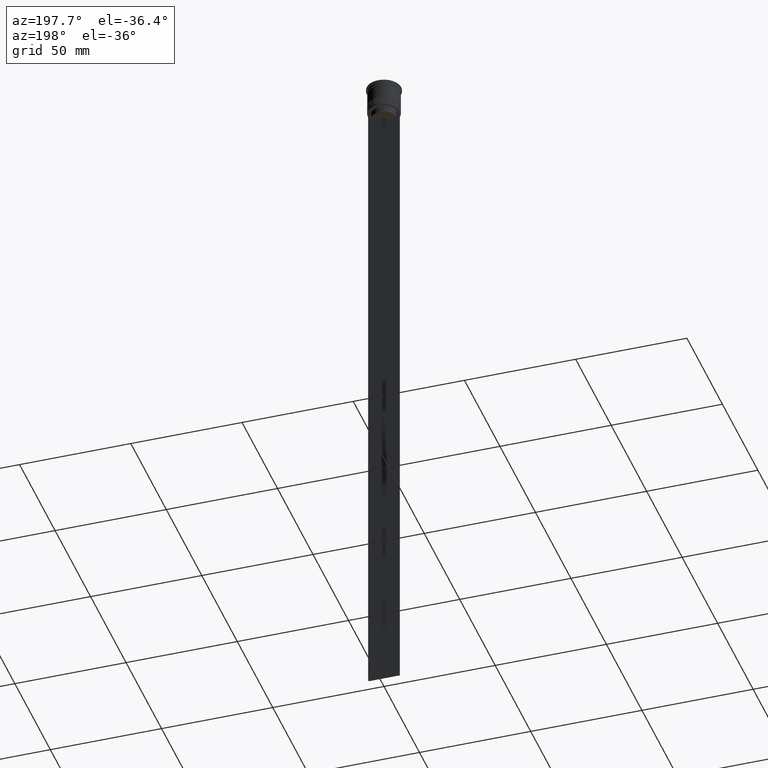
[diagram: clean part render]
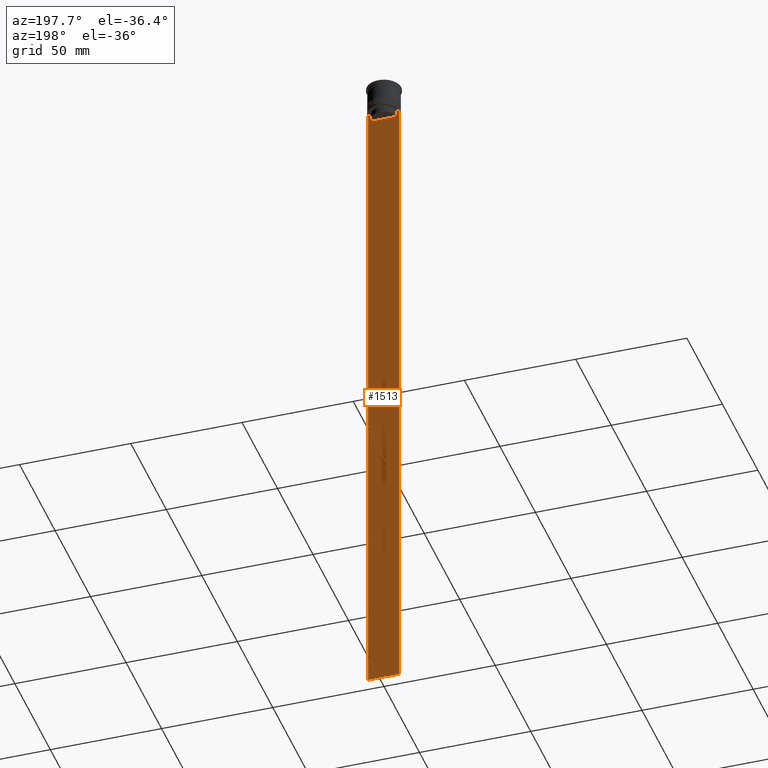
[diagram: same view with one face highlighted and labeled with its STEP entity id]
A machine part, auxiliary view. The second image highlights one B-rep face of the part: STEP entity #1513.
In plain terms, the highlighted planar face has unit normal (0, -1, -0).
Its self-contained STEP definition (entity closure, byte-faithful):
#50 = EDGE_CURVE ( 'NONE', #352, #1927, #1942, .T. ) ;
#107 = DIRECTION ( 'NONE',  ( 0.000000000000000000, 0.000000000000000000, -1.000000000000000000 ) ) ;
#112 = EDGE_CURVE ( 'NONE', #1632, #1814, #1596, .T. ) ;
#146 = B_SPLINE_CURVE_WITH_KNOTS ( 'NONE', 3,
 ( #2335, #717, #1087, #851 ),
 .UNSPECIFIED., .F., .F.,
 ( 4, 4 ),
 ( 0.02651134470867373347, 0.02721991123504337307 ),
 .UNSPECIFIED. ) ;
#159 = CARTESIAN_POINT ( 'NONE',  ( -6.999999999999987566, 0.4999999999999978351, -312.5000000000000000 ) ) ;
#223 = VERTEX_POINT ( 'NONE', #1798 ) ;
#227 = VERTEX_POINT ( 'NONE', #344 ) ;
#344 = CARTESIAN_POINT ( 'NONE',  ( -5.627832620112292794, 0.4999999999999978351, -13.00000000000000000 ) ) ;
#352 = VERTEX_POINT ( 'NONE', #789 ) ;
#362 = DIRECTION ( 'NONE',  ( 1.000000000000000000, 0.000000000000000000, 0.000000000000000000 ) ) ;
#382 = ORIENTED_EDGE ( 'NONE', *, *, #542, .T. ) ;
#416 = B_SPLINE_CURVE_WITH_KNOTS ( 'NONE', 3,
 ( #1069, #1956, #1025, #1803 ),
 .UNSPECIFIED., .F., .F.,
 ( 4, 4 ),
 ( 0.01045365750109871796, 0.01116204421161398619 ),
 .UNSPECIFIED. ) ;
#463 = LINE ( 'NONE', #1176, #1594 ) ;
#494 = CARTESIAN_POINT ( 'NONE',  ( -5.627832620112292794, 0.4999999999999978351, 0.000000000000000000 ) ) ;
#532 = VERTEX_POINT ( 'NONE', #1168 ) ;
#542 = EDGE_CURVE ( 'NONE', #227, #1632, #1549, .T. ) ;
#620 = VECTOR ( 'NONE', #362, 1000.000000000000000 ) ;
#645 = ORIENTED_EDGE ( 'NONE', *, *, #1973, .T. ) ;
#665 = AXIS2_PLACEMENT_3D ( 'NONE', #1065, #1625, #703 ) ;
#703 = DIRECTION ( 'NONE',  ( 0.000000000000000000, 0.000000000000000000, -1.000000000000000000 ) ) ;
#715 = CARTESIAN_POINT ( 'NONE',  ( 0.000000000000000000, 0.4999999999999978351, -15.50000000000000000 ) ) ;
#717 = CARTESIAN_POINT ( 'NONE',  ( 5.795128760752291441, 0.4999999999999978351, -12.83336023406855020 ) ) ;
#752 = VERTEX_POINT ( 'NONE', #159 ) ;
#759 = EDGE_CURVE ( 'NONE', #352, #752, #1279, .T. ) ;
#786 = EDGE_CURVE ( 'NONE', #532, #1658, #2323, .T. ) ;
#789 = CARTESIAN_POINT ( 'NONE',  ( -6.999999999999987566, 0.4999999999999980571, -12.50000000000000000 ) ) ;
#793 = CARTESIAN_POINT ( 'NONE',  ( 5.627832620112292794, 0.4999999999999978351, -15.50000000000000000 ) ) ;
#832 = LINE ( 'NONE', #1140, #2248 ) ;
#851 = CARTESIAN_POINT ( 'NONE',  ( 6.129641098791995368, 0.4999999999999978351, -12.50000000000000000 ) ) ;
#887 = CARTESIAN_POINT ( 'NONE',  ( -6.999999999999987566, 0.4999999999999978351, 1.535668847618198329 ) ) ;
#907 = EDGE_CURVE ( 'NONE', #223, #752, #832, .T. ) ;
#954 = ORIENTED_EDGE ( 'NONE', *, *, #1560, .T. ) ;
#981 = ORIENTED_EDGE ( 'NONE', *, *, #112, .T. ) ;
#1025 = CARTESIAN_POINT ( 'NONE',  ( -5.795128834036803234, 0.4999999999999978351, -12.83336016107156574 ) ) ;
#1055 = PLANE ( 'NONE',  #665 ) ;
#1064 = DIRECTION ( 'NONE',  ( 1.000000000000000000, 0.000000000000000000, 0.000000000000000000 ) ) ;
#1065 = CARTESIAN_POINT ( 'NONE',  ( 7.000000000000012434, 0.4999999999999978351, 1.535668847618198329 ) ) ;
#1068 = ORIENTED_EDGE ( 'NONE', *, *, #907, .T. ) ;
#1069 = CARTESIAN_POINT ( 'NONE',  ( -6.129641098791995368, 0.4999999999999978351, -12.50000000000000000 ) ) ;
#1087 = CARTESIAN_POINT ( 'NONE',  ( 5.962396079681187011, 0.4999999999999978351, -12.66669137279835411 ) ) ;
#1091 = ORIENTED_EDGE ( 'NONE', *, *, #786, .T. ) ;
#1140 = CARTESIAN_POINT ( 'NONE',  ( 7.000000000000012434, 0.4999999999999978351, -312.5000000000000000 ) ) ;
#1168 = CARTESIAN_POINT ( 'NONE',  ( 6.129641098791995368, 0.4999999999999978351, -12.50000000000000000 ) ) ;
#1176 = CARTESIAN_POINT ( 'NONE',  ( 7.000000000000012434, 0.4999999999999978351, 1.535668847618198329 ) ) ;
#1251 = CARTESIAN_POINT ( 'NONE',  ( -6.129641098791995368, 0.4999999999999978351, -12.50000000000000000 ) ) ;
#1279 = LINE ( 'NONE', #887, #1959 ) ;
#1299 = CARTESIAN_POINT ( 'NONE',  ( 7.000000000000012434, 0.4999999999999978351, -12.50000000000000000 ) ) ;
#1328 = ORIENTED_EDGE ( 'NONE', *, *, #2304, .T. ) ;
#1355 = CARTESIAN_POINT ( 'NONE',  ( 5.627832620112292794, 0.4999999999999978351, 0.000000000000000000 ) ) ;
#1480 = CARTESIAN_POINT ( 'NONE',  ( -5.627832620112292794, 0.4999999999999978351, -15.50000000000000000 ) ) ;
#1509 = DIRECTION ( 'NONE',  ( -1.000000000000000000, 0.000000000000000000, 0.000000000000000000 ) ) ;
#1513 = ADVANCED_FACE ( 'NONE', ( #2133 ), #1055, .F. ) ;
#1524 = VECTOR ( 'NONE', #1064, 1000.000000000000000 ) ;
#1533 = LINE ( 'NONE', #1355, #2178 ) ;
#1549 = LINE ( 'NONE', #494, #1650 ) ;
#1560 = EDGE_CURVE ( 'NONE', #1900, #532, #146, .T. ) ;
#1594 = VECTOR ( 'NONE', #107, 1000.000000000000000 ) ;
#1596 = LINE ( 'NONE', #715, #1907 ) ;
#1625 = DIRECTION ( 'NONE',  ( 0.000000000000000000, -1.000000000000000000, -0.000000000000000000 ) ) ;
#1632 = VERTEX_POINT ( 'NONE', #1480 ) ;
#1650 = VECTOR ( 'NONE', #2125, 1000.000000000000000 ) ;
#1658 = VERTEX_POINT ( 'NONE', #1299 ) ;
#1798 = CARTESIAN_POINT ( 'NONE',  ( 7.000000000000012434, 0.4999999999999978351, -312.5000000000000000 ) ) ;
#1803 = CARTESIAN_POINT ( 'NONE',  ( -5.627832620112292794, 0.4999999999999978351, -13.00000000000000000 ) ) ;
#1814 = VERTEX_POINT ( 'NONE', #793 ) ;
#1866 = EDGE_CURVE ( 'NONE', #1814, #1900, #1533, .T. ) ;
#1900 = VERTEX_POINT ( 'NONE', #2129 ) ;
#1901 = DIRECTION ( 'NONE',  ( -0.000000000000000000, -0.000000000000000000, 1.000000000000000000 ) ) ;
#1907 = VECTOR ( 'NONE', #1930, 1000.000000000000000 ) ;
#1912 = ORIENTED_EDGE ( 'NONE', *, *, #50, .T. ) ;
#1927 = VERTEX_POINT ( 'NONE', #1251 ) ;
#1930 = DIRECTION ( 'NONE',  ( 1.000000000000000000, 0.000000000000000000, 0.000000000000000000 ) ) ;
#1942 = LINE ( 'NONE', #2280, #1524 ) ;
#1956 = CARTESIAN_POINT ( 'NONE',  ( -5.962396146966409738, 0.4999999999999978351, -12.66669130573587054 ) ) ;
#1959 = VECTOR ( 'NONE', #2148, 1000.000000000000000 ) ;
#1973 = EDGE_CURVE ( 'NONE', #1927, #227, #416, .T. ) ;
#2125 = DIRECTION ( 'NONE',  ( 0.000000000000000000, 0.000000000000000000, -1.000000000000000000 ) ) ;
#2129 = CARTESIAN_POINT ( 'NONE',  ( 5.627832620112292794, 0.4999999999999978351, -13.00000000000000000 ) ) ;
#2133 = FACE_OUTER_BOUND ( 'NONE', #2240, .T. ) ;
#2148 = DIRECTION ( 'NONE',  ( 0.000000000000000000, 0.000000000000000000, -1.000000000000000000 ) ) ;
#2178 = VECTOR ( 'NONE', #1901, 1000.000000000000000 ) ;
#2218 = ORIENTED_EDGE ( 'NONE', *, *, #759, .F. ) ;
#2240 = EDGE_LOOP ( 'NONE', ( #1912, #645, #382, #981, #2330, #954, #1091, #1328, #1068, #2218 ) ) ;
#2248 = VECTOR ( 'NONE', #1509, 1000.000000000000000 ) ;
#2280 = CARTESIAN_POINT ( 'NONE',  ( 7.000000000000012434, 0.4999999999999978351, -12.50000000000000000 ) ) ;
#2304 = EDGE_CURVE ( 'NONE', #1658, #223, #463, .T. ) ;
#2323 = LINE ( 'NONE', #2336, #620 ) ;
#2330 = ORIENTED_EDGE ( 'NONE', *, *, #1866, .T. ) ;
#2335 = CARTESIAN_POINT ( 'NONE',  ( 5.627832620112292794, 0.4999999999999978351, -13.00000000000000000 ) ) ;
#2336 = CARTESIAN_POINT ( 'NONE',  ( 7.000000000000012434, 0.4999999999999978351, -12.50000000000000000 ) ) ;